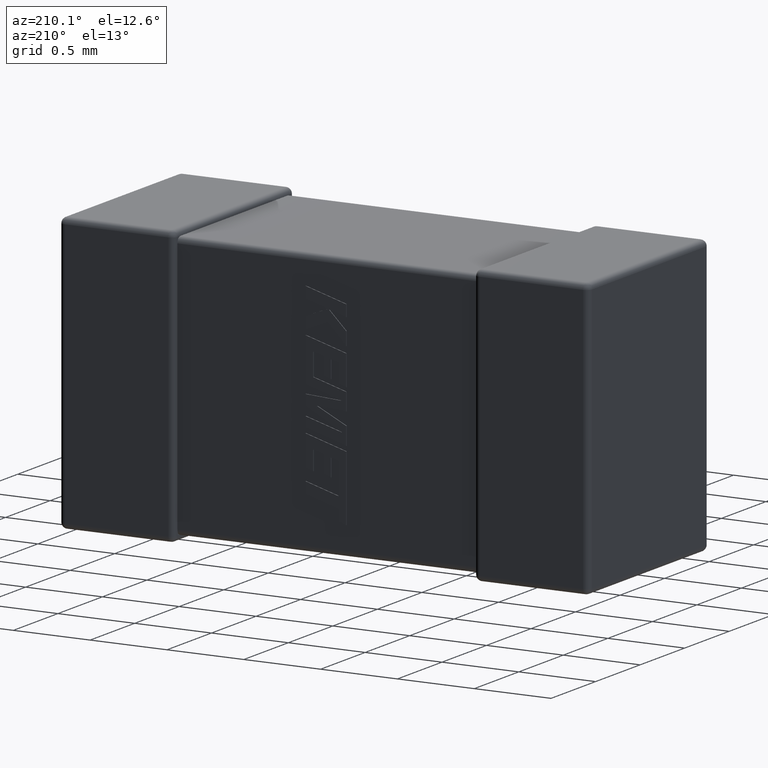
[diagram: clean part render]
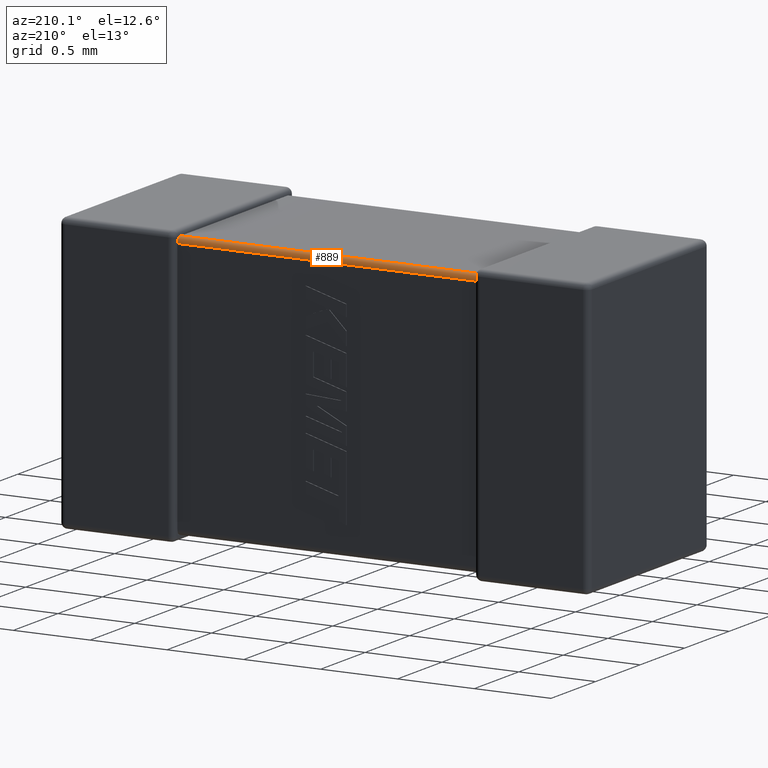
[diagram: same view with one face highlighted and labeled with its STEP entity id]
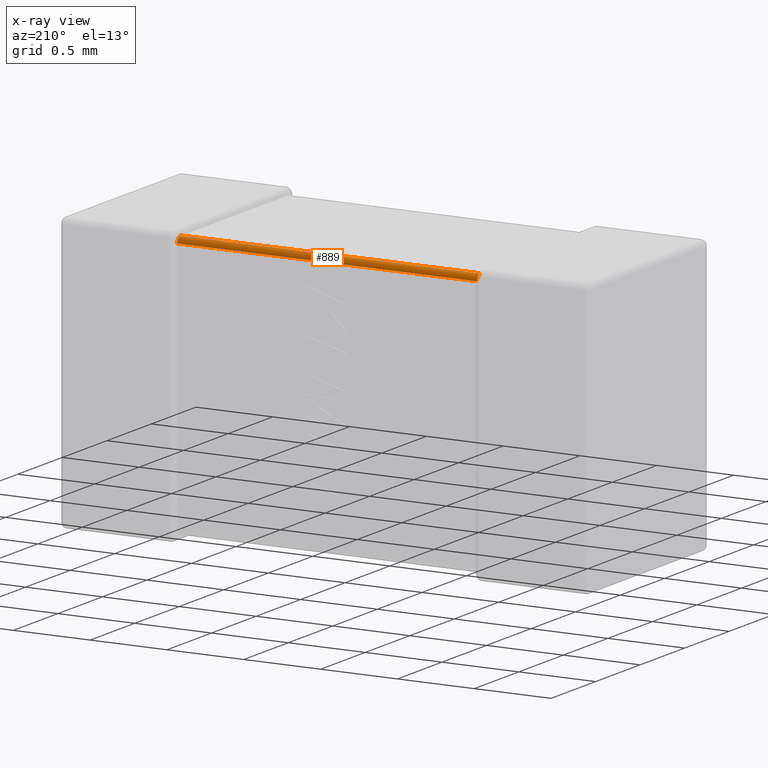
[diagram: x-ray of the same camera — body ghosted, the highlighted face saturated]
A machine part, auxiliary view. The second image highlights one B-rep face of the part: STEP entity #889.
The next image is the same camera in x-ray: the body ghosted, the highlighted face saturated — about 0% of this face is hidden behind the body in this view.
In plain terms, the highlighted cylindrical surface (edge-blend (fillet) strip) has radius 0.0374 mm, axis along (-1, 0, 0).
Its self-contained STEP definition (entity closure, byte-faithful):
#53 = CARTESIAN_POINT ( 'NONE',  ( 0.7499971884408485057, 1.312101173622828743, -0.06903650810916911462 ) ) ;
#113 = CARTESIAN_POINT ( 'NONE',  ( 0.7489228863994763508, 1.299472817018279880, -0.04640453747376373228 ) ) ;
#133 = CARTESIAN_POINT ( 'NONE',  ( 0.7491234069079725222, 1.298319807103547552, -0.04549424579225175985 ) ) ;
#227 = CARTESIAN_POINT ( 'NONE',  ( 2.701641925300021008, 1.301594077887624490, -0.04840592211237548098 ) ) ;
#279 = CARTESIAN_POINT ( 'NONE',  ( 2.700133080042509182, 1.309122905421320704, -0.05866779514108298038 ) ) ;
#371 = CARTESIAN_POINT ( 'NONE',  ( 0.7483580746999793920, 1.301594077887624268, -0.04840592211237533526 ) ) ;
#399 = VERTEX_POINT ( 'NONE', #800 ) ;
#413 = CARTESIAN_POINT ( 'NONE',  ( 2.700000000000000178, 1.275120000000000031, -0.03743999999999991085 ) ) ;
#521 = VERTEX_POINT ( 'NONE', #3497 ) ;
#530 = CARTESIAN_POINT ( 'NONE',  ( 0.7486719482836988737, 1.300569442670480358, -0.04738128689505687052 ) ) ;
#586 = CARTESIAN_POINT ( 'NONE',  ( 2.700057437254053117, 1.310486934022920824, -0.06259449725007706911 ) ) ;
#701 = CARTESIAN_POINT ( 'NONE',  ( 0.7499713104937157926, 1.310248868100307051, -0.06135212313068100221 ) ) ;
#770 = CARTESIAN_POINT ( 'NONE',  ( 2.700010299896591803, 1.284830263302208619, -0.03850982503331262102 ) ) ;
#800 = CARTESIAN_POINT ( 'NONE',  ( 2.701641925300021008, 1.301594077887624490, -0.04840592211237548098 ) ) ;
#808 = EDGE_CURVE ( 'NONE', #4553, #1858, #4616, .T. ) ;
#823 = CARTESIAN_POINT ( 'NONE',  ( 2.700028689506284163, 1.288647876869318365, -0.03975113189969260719 ) ) ;
#859 = EDGE_CURVE ( 'NONE', #4017, #521, #3561, .T. ) ;
#871 = CARTESIAN_POINT ( 'NONE',  ( 0.7500181245109730499, 1.283483006658176828, -0.03815049843049780898 ) ) ;
#889 = ADVANCED_FACE ( 'NONE', ( #2645 ), #3055, .T. ) ;
#896 = DIRECTION ( 'NONE',  ( -1.000000000000000000, 0.000000000000000000, 0.000000000000000000 ) ) ;
#990 = B_SPLINE_CURVE_WITH_KNOTS ( 'NONE', 3,
 ( #3852, #3902, #2419, #586, #279, #1707, #3087, #3875, #2030, #3154 ),
 .UNSPECIFIED., .F., .F.,
 ( 4, 3, 3, 4 ),
 ( 0.000000000000000000, 1.245931295866762636E-05, 2.494435532442512300E-05, 2.933501522755382296E-05 ),
 .UNSPECIFIED. ) ;
#1133 = CARTESIAN_POINT ( 'NONE',  ( 0.7499897001034083743, 1.311490174966687183, -0.06516973669779071998 ) ) ;
#1192 = EDGE_CURVE ( 'NONE', #521, #4553, #1217, .T. ) ;
#1217 = B_SPLINE_CURVE_WITH_KNOTS ( 'NONE', 3,
 ( #2314, #2270, #871, #1233, #4443, #1912, #133, #113, #530, #4137 ),
 .UNSPECIFIED., .F., .F.,
 ( 4, 3, 3, 4 ),
 ( 0.000000000000000000, 1.245931295866763314E-05, 2.494435532442531613E-05, 2.933501522755362306E-05 ),
 .UNSPECIFIED. ) ;
#1233 = CARTESIAN_POINT ( 'NONE',  ( 0.7499425627459468391, 1.287405502749922714, -0.03951306597707891777 ) ) ;
#1386 = CARTESIAN_POINT ( 'NONE',  ( 0.7495804114643376259, 1.306689860369978140, -0.05437415535872650030 ) ) ;
#1515 = CARTESIAN_POINT ( 'NONE',  ( 2.699999074182535708, 1.279033613440885730, -0.03759388123974647528 ) ) ;
#1521 = AXIS2_PLACEMENT_3D ( 'NONE', #3688, #896, #1874 ) ;
#1707 = CARTESIAN_POINT ( 'NONE',  ( 2.700314308179935008, 1.307058327418119337, -0.05491337878556173252 ) ) ;
#1755 = CARTESIAN_POINT ( 'NONE',  ( 0.7500000000000002220, 1.275120000000000031, -0.03743999999999991085 ) ) ;
#1858 = VERTEX_POINT ( 'NONE', #4008 ) ;
#1874 = DIRECTION ( 'NONE',  ( 0.000000000000000000, 0.000000000000000000, 1.000000000000000000 ) ) ;
#1912 = CARTESIAN_POINT ( 'NONE',  ( 0.7496856918200649478, 1.295086621214438072, -0.04294167258188052311 ) ) ;
#2030 = CARTESIAN_POINT ( 'NONE',  ( 2.701328051716301193, 1.302618713104942927, -0.04943055732951960601 ) ) ;
#2158 = CARTESIAN_POINT ( 'NONE',  ( 0.7499999999999998890, 1.312559999999999949, -0.07487999999999982170 ) ) ;
#2270 = CARTESIAN_POINT ( 'NONE',  ( 0.7500000000000002220, 1.279273104319553545, -0.03743999999999991085 ) ) ;
#2314 = CARTESIAN_POINT ( 'NONE',  ( 0.7500000000000002220, 1.275120000000000031, -0.03743999999999991085 ) ) ;
#2419 = CARTESIAN_POINT ( 'NONE',  ( 2.699981875489026351, 1.311849501569501975, -0.06651699334182310797 ) ) ;
#2444 = EDGE_LOOP ( 'NONE', ( #4546, #4056, #4650, #3858, #2987, #4571 ) ) ;
#2645 = FACE_OUTER_BOUND ( 'NONE', #2444, .T. ) ;
#2701 = CARTESIAN_POINT ( 'NONE',  ( 2.700000000000000178, 1.275120000000000031, -0.03743999999999991085 ) ) ;
#2845 = CARTESIAN_POINT ( 'NONE',  ( 0.7497761951928442192, 1.308472407142570848, -0.05786910532052515210 ) ) ;
#2871 = CARTESIAN_POINT ( 'NONE',  ( 0.7500009258174642479, 1.312406118760253593, -0.07096638655911374771 ) ) ;
#2945 = CARTESIAN_POINT ( 'NONE',  ( 2.699999999999940670, 1.277073826076288610, -0.03743999999999649692 ) ) ;
#2970 = EDGE_CURVE ( 'NONE', #1858, #3962, #4618, .T. ) ;
#2987 = ORIENTED_EDGE ( 'NONE', *, *, #2970, .F. ) ;
#3055 = CYLINDRICAL_SURFACE ( 'NONE', #1521, 0.03744000000000000106 ) ;
#3083 = DIRECTION ( 'NONE',  ( -1.000000000000000000, 0.000000000000000000, -0.000000000000000000 ) ) ;
#3087 = CARTESIAN_POINT ( 'NONE',  ( 2.700876593092027544, 1.304505754207748280, -0.05168019289645230802 ) ) ;
#3154 = CARTESIAN_POINT ( 'NONE',  ( 2.701641925300021008, 1.301594077887624490, -0.04840592211237548098 ) ) ;
#3196 = CARTESIAN_POINT ( 'NONE',  ( 0.7483580746999793920, 1.301594077887624268, -0.04840592211237533526 ) ) ;
#3224 = CARTESIAN_POINT ( 'NONE',  ( 2.700000000000000178, 1.312559999999999949, -0.07487999999999982170 ) ) ;
#3317 = EDGE_CURVE ( 'NONE', #399, #4017, #4257, .T. ) ;
#3497 = CARTESIAN_POINT ( 'NONE',  ( 0.7500000000000002220, 1.275120000000000031, -0.03743999999999991085 ) ) ;
#3561 = LINE ( 'NONE', #1755, #3873 ) ;
#3688 = CARTESIAN_POINT ( 'NONE',  ( 0.7499999999999998890, 1.275120000000000031, -0.07487999999999982170 ) ) ;
#3777 = CARTESIAN_POINT ( 'NONE',  ( 2.700419588535662552, 1.295625844641272950, -0.04331013963002151163 ) ) ;
#3802 = CARTESIAN_POINT ( 'NONE',  ( 2.700223804807155847, 1.292130894679474507, -0.04152759285742871342 ) ) ;
#3852 = CARTESIAN_POINT ( 'NONE',  ( 2.700000000000000178, 1.312559999999999949, -0.07487999999999982170 ) ) ;
#3858 = ORIENTED_EDGE ( 'NONE', *, *, #4151, .F. ) ;
#3873 = VECTOR ( 'NONE', #3083, 1000.000000000000000 ) ;
#3875 = CARTESIAN_POINT ( 'NONE',  ( 2.701077113600523383, 1.303595462526236037, -0.05052718298171984812 ) ) ;
#3902 = CARTESIAN_POINT ( 'NONE',  ( 2.700000000000000178, 1.312559999999999949, -0.07072689568044646102 ) ) ;
#3962 = VERTEX_POINT ( 'NONE', #3224 ) ;
#4008 = CARTESIAN_POINT ( 'NONE',  ( 0.7499999999999998890, 1.312559999999999949, -0.07487999999999982170 ) ) ;
#4017 = VERTEX_POINT ( 'NONE', #2701 ) ;
#4043 = CARTESIAN_POINT ( 'NONE',  ( 2.700002811559151450, 1.280963491890830142, -0.03789882637717112424 ) ) ;
#4056 = ORIENTED_EDGE ( 'NONE', *, *, #859, .F. ) ;
#4132 = VECTOR ( 'NONE', #4236, 1000.000000000000000 ) ;
#4137 = CARTESIAN_POINT ( 'NONE',  ( 0.7483580746999793920, 1.301594077887624268, -0.04840592211237533526 ) ) ;
#4151 = EDGE_CURVE ( 'NONE', #3962, #399, #990, .T. ) ;
#4236 = DIRECTION ( 'NONE',  ( 1.000000000000000000, 0.000000000000000000, -0.000000000000000000 ) ) ;
#4257 = B_SPLINE_CURVE_WITH_KNOTS ( 'NONE', 3,
 ( #227, #4561, #3777, #3802, #823, #770, #4043, #1515, #2945, #413 ),
 .UNSPECIFIED., .F., .F.,
 ( 4, 3, 3, 4 ),
 ( 0.000000000000000000, 1.178449470714600726E-05, 2.350683308088865161E-05, 2.930195342285765115E-05 ),
 .UNSPECIFIED. ) ;
#4305 = CARTESIAN_POINT ( 'NONE',  ( 0.7500000000000595080, 1.312560000000003502, -0.07292617392371097962 ) ) ;
#4443 = CARTESIAN_POINT ( 'NONE',  ( 0.7498669199574906630, 1.291332204858917088, -0.04087709457867921836 ) ) ;
#4545 = CARTESIAN_POINT ( 'NONE',  ( 2.700000000000000178, 1.312559999999999949, -0.07487999999999982170 ) ) ;
#4546 = ORIENTED_EDGE ( 'NONE', *, *, #1192, .F. ) ;
#4553 = VERTEX_POINT ( 'NONE', #371 ) ;
#4561 = CARTESIAN_POINT ( 'NONE',  ( 2.700810345687591596, 1.298879399743856800, -0.04569124396860799187 ) ) ;
#4571 = ORIENTED_EDGE ( 'NONE', *, *, #808, .F. ) ;
#4616 = B_SPLINE_CURVE_WITH_KNOTS ( 'NONE', 3,
 ( #3196, #4638, #1386, #2845, #701, #1133, #53, #2871, #4305, #2158 ),
 .UNSPECIFIED., .F., .F.,
 ( 4, 3, 3, 4 ),
 ( 0.000000000000000000, 1.178449470714584294E-05, 2.350683308088821793E-05, 2.930195342285772908E-05 ),
 .UNSPECIFIED. ) ;
#4618 = LINE ( 'NONE', #4545, #4132 ) ;
#4638 = CARTESIAN_POINT ( 'NONE',  ( 0.7491896543124086927, 1.304308756031391736, -0.05112060025614276887 ) ) ;
#4650 = ORIENTED_EDGE ( 'NONE', *, *, #3317, .F. ) ;